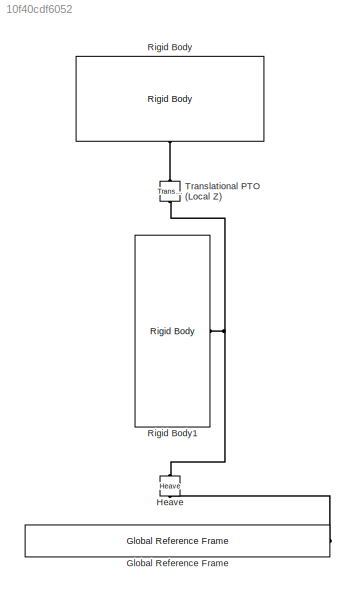
MODEL slx_10f40cdf6052
KIND model
BLOCK [Reference] Global Reference Frame  REF=WECSim_Lib/Frames/Global Reference Frame
  Ports = [0, 0, 0, 0, 0, 0, 1]
  SourceBlock = WECSim_Lib/Frames/Global Reference Frame
  SourceType = Global References
  simu = simu
  waves = waves
BLOCK [Reference] Heave  REF=WECSim_Lib/Constraints/Heave
  AttributesFormatString = %<constraint>
  Ports = [0, 0, 0, 0, 0, 1, 1]
  SourceBlock = WECSim_Lib/Constraints/Heave
  SourceType = Constraint
  constraint = constraint(1)
BLOCK [Reference] Rigid Body  REF=WECSim_Lib/Body Elements/Rigid Body
  AttributesFormatString = %<body>
  Ports = [0, 0, 0, 0, 0, 0, 1]
  SourceBlock = WECSim_Lib/Body Elements/Rigid Body
  SourceType = Body Block
  body = body(1)
BLOCK [Reference] Rigid Body1  REF=WECSim_Lib/Body Elements/Rigid Body
  AttributesFormatString = %<body>
  Ports = [0, 0, 0, 0, 0, 0, 1]
  SourceBlock = WECSim_Lib/Body Elements/Rigid Body
  SourceType = Body Block
  body = body(2)
BLOCK [Reference] Translational PTO (Local Z)  REF=WECSim_Lib/PTOs/Translational PTO 
(Local Z)
  AttributesFormatString = %<pto>
  Ports = [0, 0, 0, 0, 0, 1, 1]
  SourceBlock = WECSim_Lib/PTOs/Translational PTO \n(Local Z)
  SourceType = PTO\n\nPTO
  pto = pto(1)
PLINE Global Reference Frame:RConn1 -- Heave:LConn1
PNET net1: Heave:RConn1 -- Rigid Body1:RConn1 -- Translational PTO (Local Z):RConn1
PLINE Rigid Body:RConn1 -- Translational PTO (Local Z):LConn1
note: PNET lines group multi-terminal physical nets as a canonical sorted terminal list (undirected conserving connections); 2-terminal nets keep the pairwise PLINE form
